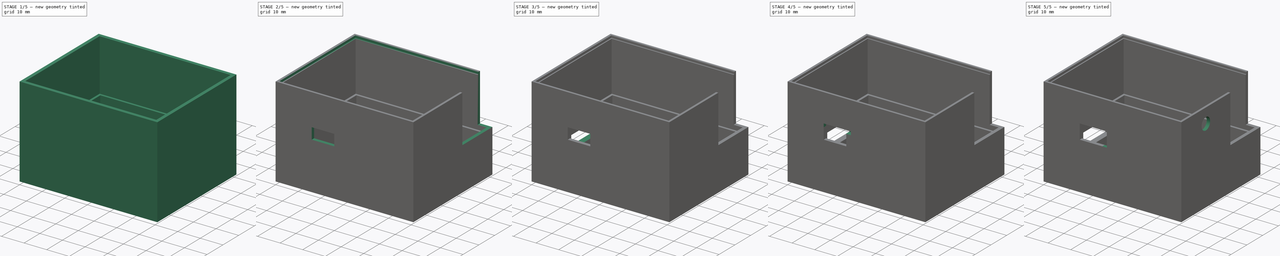
[diagram: build sequence overview — one tinted view per stage of 5, left to right]
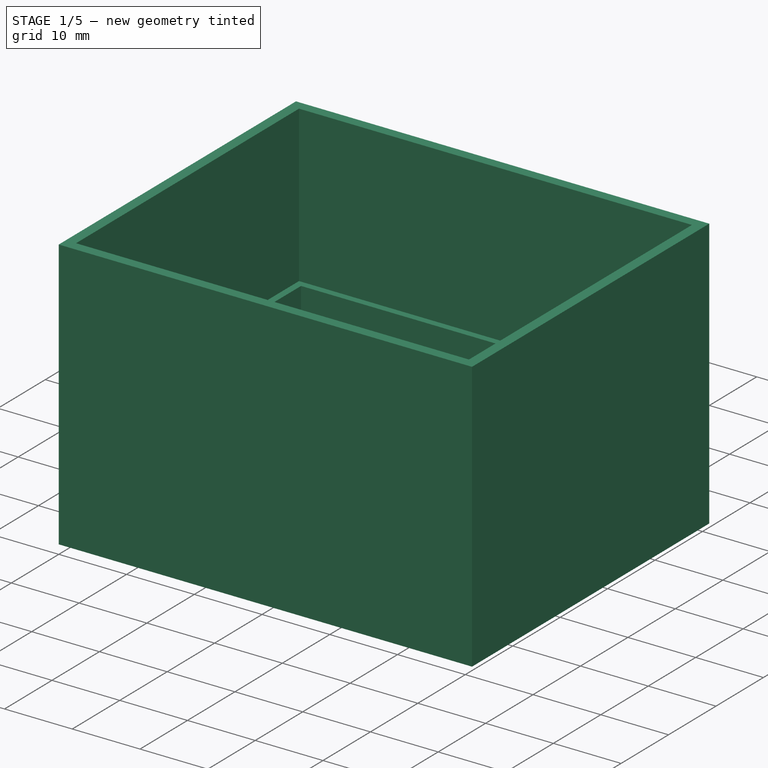
[diagram: stage 1 of 5 — iso view after this stage's code; geometry added in this stage tinted green]
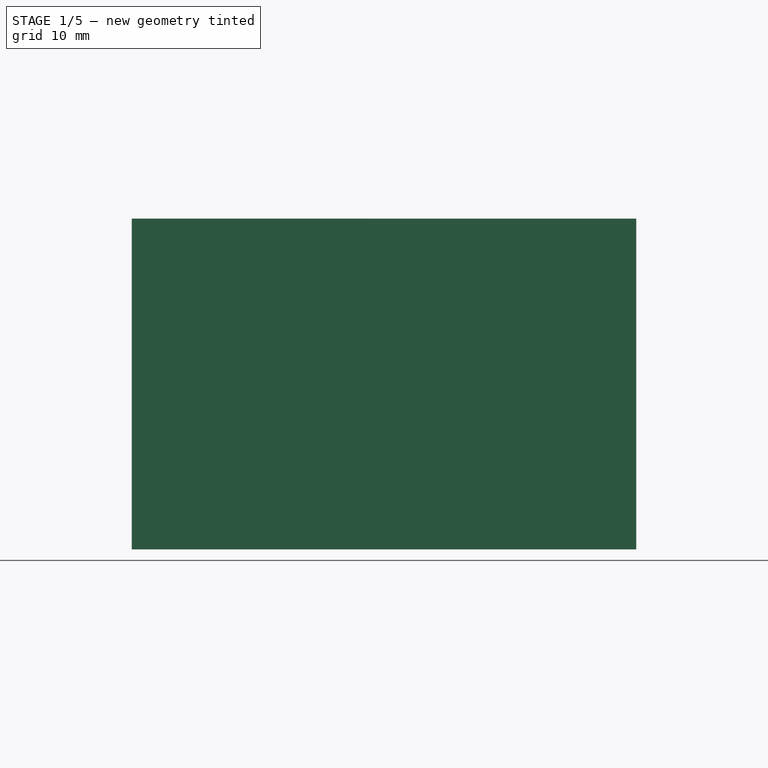
[diagram: stage 1 of 5 — front view after this stage's code; geometry added in this stage tinted green]
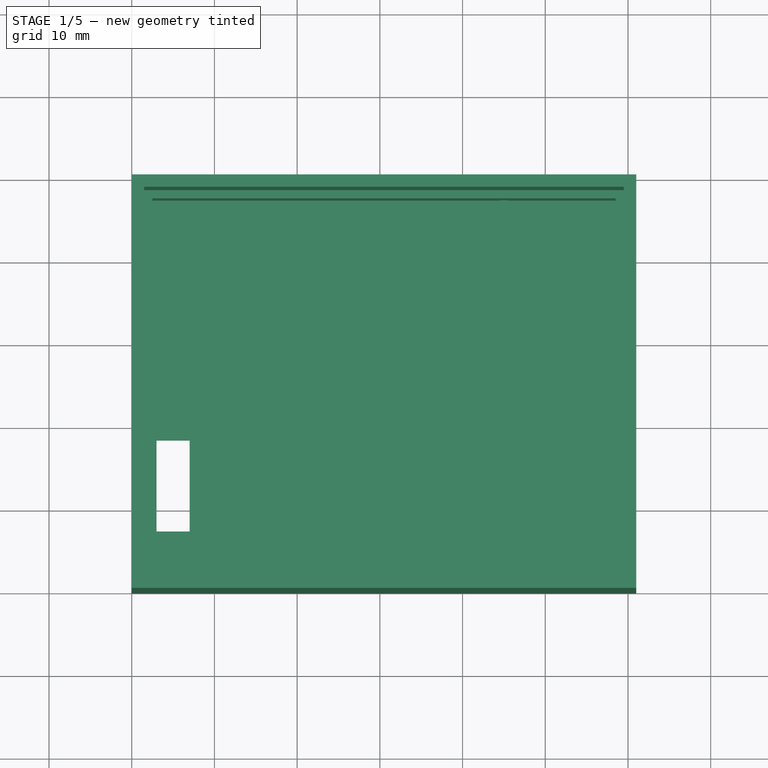
[diagram: stage 1 of 5 — top view after this stage's code; geometry added in this stage tinted green]
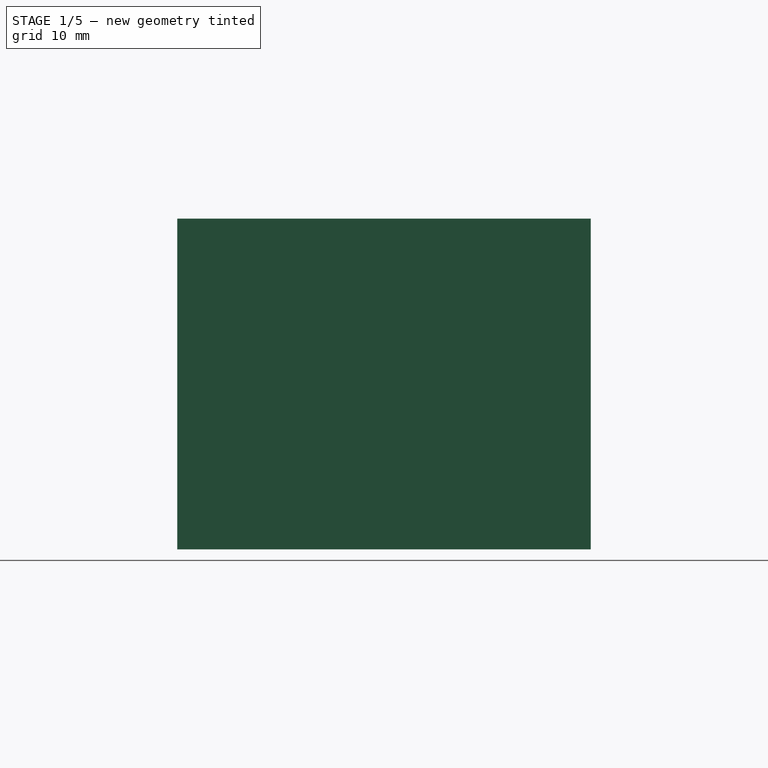
[diagram: stage 1 of 5 — right view after this stage's code; geometry added in this stage tinted green]
FCSTD DOCUMENT  (FreeCAD 0.18R)
Label: base
License: All rights reserved
LicenseURL: http://en.wikipedia.org/wiki/All_rights_reserved
objects: Sketcher::SketchObject×25, PartDesign::Pocket×19, PartDesign::Pad×5, PartDesign::Body×1
note: 74 computed .brp shape members not serialized (recipe doc carries the construction recipe); baked Part::Feature solids carry a one-line shape summary decoded from their .brp

FEATURE [Sketcher::SketchObject] Sketch
  MapMode = 5
  Support = -> [XY_Plane]
  sketch-geometry (4):
    g0: LineSegment StartX=0 StartY=0 StartZ=0 EndX=61 EndY=0 EndZ=0
    g1: LineSegment StartX=61 StartY=0 StartZ=0 EndX=61 EndY=50 EndZ=0
    g2: LineSegment StartX=61 StartY=50 StartZ=0 EndX=0 EndY=50 EndZ=0
    g3: LineSegment StartX=0 StartY=50 StartZ=0 EndX=0 EndY=0 EndZ=0
  constraints (9):
    c: Coincident(g0,g1)
    c: Coincident(g1,g2)
    c: Coincident(g2,g3)
    c: Coincident(g3,g0)
    c: Horizontal(g0)
    c: Horizontal(g2)
    c: Vertical(g1)
    c: Vertical(g3)
    c: Coincident(g0,g-1)
FEATURE [PartDesign::Pad] Pad
  Length = 40
  Length2 = 100
  Profile = -> Sketch
  Type = 0
FEATURE [Sketcher::SketchObject] Sketch001
  MapMode = 5
  Placement = pos=(0,0,40) rot=(0,0,1;0rad)
  Support = -> [Pad]
  sketch-geometry (4):
    g0: LineSegment StartX=1.5 StartY=1.5 StartZ=0 EndX=59.5 EndY=1.5 EndZ=0
    g1: LineSegment StartX=59.5 StartY=1.5 StartZ=0 EndX=59.5 EndY=48.5 EndZ=0
    g2: LineSegment StartX=59.5 StartY=48.5 StartZ=0 EndX=1.5 EndY=48.5 EndZ=0
    g3: LineSegment StartX=1.5 StartY=48.5 StartZ=0 EndX=1.5 EndY=1.5 EndZ=0
  constraints (8):
    c: Coincident(g0,g1)
    c: Coincident(g1,g2)
    c: Coincident(g2,g3)
    c: Coincident(g3,g0)
    c: Horizontal(g0)
    c: Horizontal(g2)
    c: Vertical(g1)
    c: Vertical(g3)
FEATURE [PartDesign::Pocket] Pocket
  BaseFeature = -> Pad
  Length = 23
  Length2 = 100
  Profile = -> Sketch001
  Type = 0
FEATURE [Sketcher::SketchObject] Sketch002
  MapMode = 5
  Placement = pos=(0,0,17) rot=(0,0,1;0rad)
  Support = -> [Pocket]
  sketch-geometry (4):
    g0: LineSegment StartX=2.5 StartY=2.5 StartZ=0 EndX=58.5 EndY=2.5 EndZ=0
    g1: LineSegment StartX=58.5 StartY=2.5 StartZ=0 EndX=58.5 EndY=47.5 EndZ=0
    g2: LineSegment StartX=58.5 StartY=47.5 StartZ=0 EndX=2.5 EndY=47.5 EndZ=0
    g3: LineSegment StartX=2.5 StartY=47.5 StartZ=0 EndX=2.5 EndY=2.5 EndZ=0
  constraints (8):
    c: Coincident(g0,g1)
    c: Coincident(g1,g2)
    c: Coincident(g2,g3)
    c: Coincident(g3,g0)
    c: Horizontal(g0)
    c: Horizontal(g2)
    c: Vertical(g1)
    c: Vertical(g3)
FEATURE [PartDesign::Pocket] Pocket001
  BaseFeature = -> Pocket
  Length = 16
  Length2 = 100
  Profile = -> Sketch002
  Type = 0
FEATURE [Sketcher::SketchObject] Sketch003
  MapMode = 5
  Placement = pos=(0,0,1) rot=(0,0,1;0rad)
  Support = -> [Pocket001]
  sketch-geometry (4):
    g0: LineSegment StartX=44.5 StartY=2.5 StartZ=0 EndX=45.5 EndY=2.5 EndZ=0
    g1: LineSegment StartX=45.5 StartY=2.5 StartZ=0 EndX=45.5 EndY=47.5 EndZ=0
    g2: LineSegment StartX=45.5 StartY=47.5 StartZ=0 EndX=44.5 EndY=47.5 EndZ=0
    g3: LineSegment StartX=44.5 StartY=47.5 StartZ=0 EndX=44.5 EndY=2.5 EndZ=0
  constraints (8):
    c: Coincident(g0,g1)
    c: Coincident(g1,g2)
    c: Coincident(g2,g3)
    c: Coincident(g3,g0)
    c: Horizontal(g0)
    c: Horizontal(g2)
    c: Vertical(g1)
    c: Vertical(g3)
FEATURE [PartDesign::Pad] Pad001
  BaseFeature = -> Pocket001
  Length = 3
  Length2 = 100
  Profile = -> Sketch003
  Type = 0
FEATURE [Sketcher::SketchObject] Sketch004
  MapMode = 5
  Placement = pos=(0,0,1) rot=(0,0,1;0rad)
  Support = -> [Pad001]
  sketch-geometry (4):
    g0: LineSegment StartX=3 StartY=7.5 StartZ=0 EndX=7 EndY=7.5 EndZ=0
    g1: LineSegment StartX=7 StartY=7.5 StartZ=0 EndX=7 EndY=18.5 EndZ=0
    g2: LineSegment StartX=7 StartY=18.5 StartZ=0 EndX=3 EndY=18.5 EndZ=0
    g3: LineSegment StartX=3 StartY=18.5 StartZ=0 EndX=3 EndY=7.5 EndZ=0
  constraints (8):
    c: Coincident(g0,g1)
    c: Coincident(g1,g2)
    c: Coincident(g2,g3)
    c: Coincident(g3,g0)
    c: Horizontal(g0)
    c: Horizontal(g2)
    c: Vertical(g1)
    c: Vertical(g3)
FEATURE [PartDesign::Pocket] Pocket002
  BaseFeature = -> Pad001
  Length = 5
  Length2 = 100
  Profile = -> Sketch004
  Type = 0
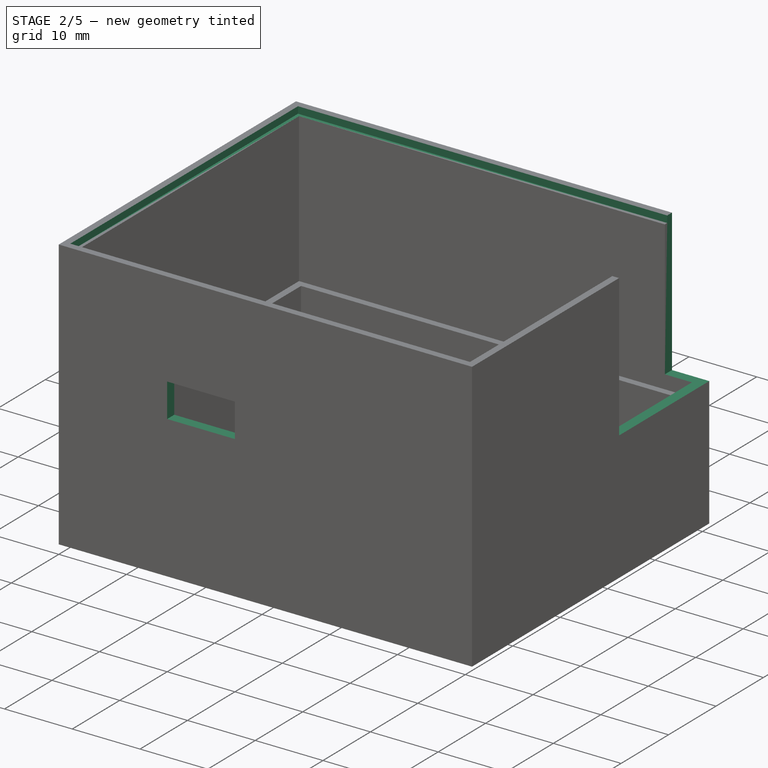
[diagram: stage 2 of 5 — iso view after this stage's code; geometry added in this stage tinted green]
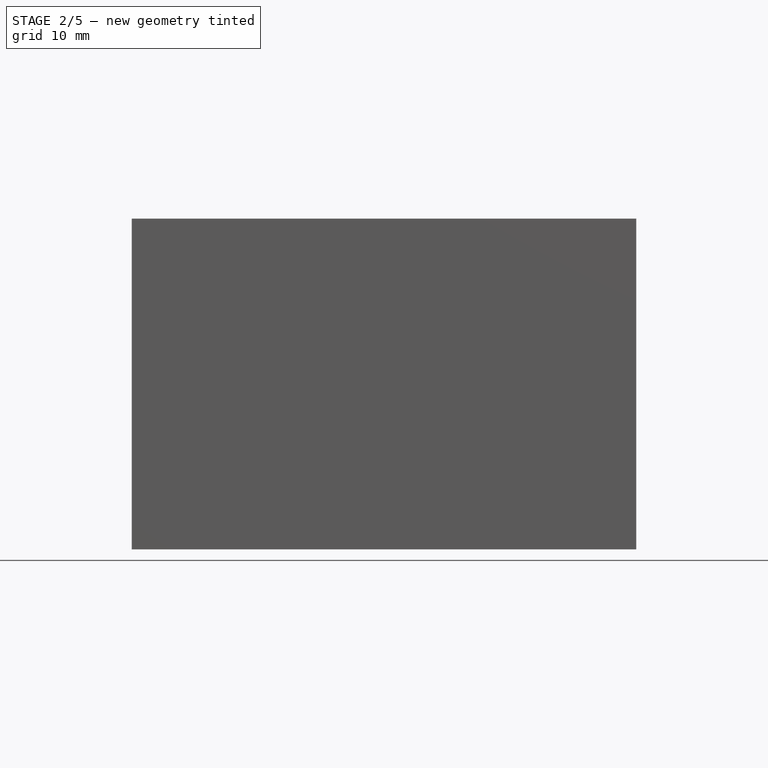
[diagram: stage 2 of 5 — front view after this stage's code; geometry added in this stage tinted green]
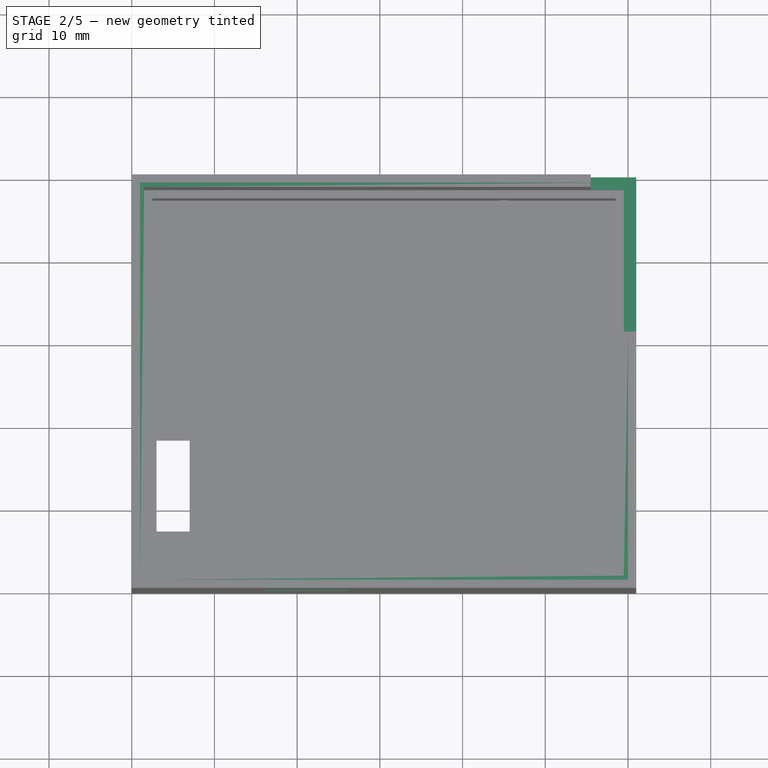
[diagram: stage 2 of 5 — top view after this stage's code; geometry added in this stage tinted green]
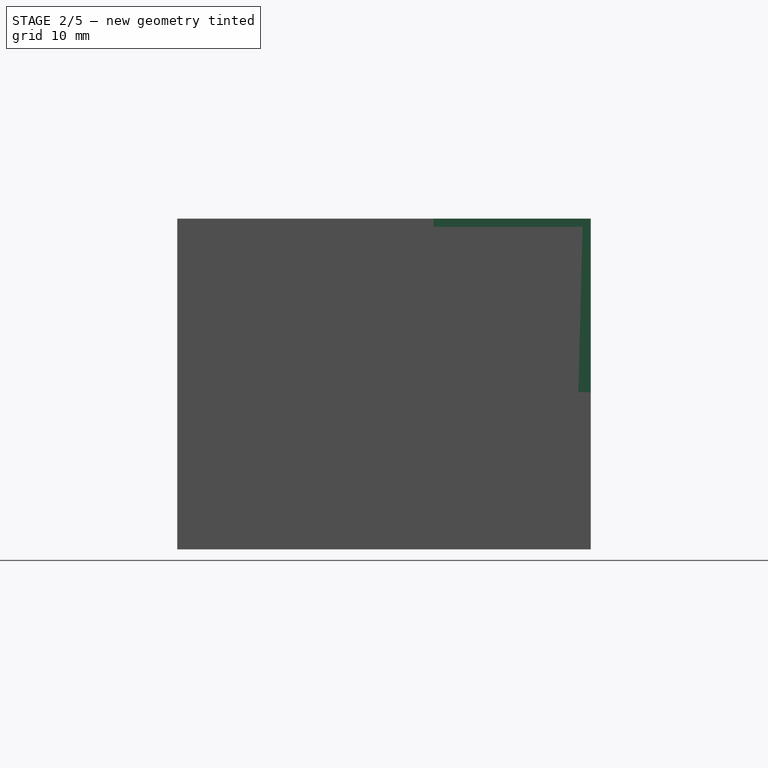
[diagram: stage 2 of 5 — right view after this stage's code; geometry added in this stage tinted green]
FEATURE [Sketcher::SketchObject] Sketch005
  MapMode = 5
  Placement = pos=(0,0,40) rot=(0,0,1;0rad)
  Support = -> [Pocket002]
  sketch-geometry (4):
    g0: LineSegment StartX=55.5 StartY=50 StartZ=0 EndX=61 EndY=50 EndZ=0
    g1: LineSegment StartX=61 StartY=50 StartZ=0 EndX=61 EndY=34.5 EndZ=0
    g2: LineSegment StartX=61 StartY=34.5 StartZ=0 EndX=55.5 EndY=34.5 EndZ=0
    g3: LineSegment StartX=55.5 StartY=34.5 StartZ=0 EndX=55.5 EndY=50 EndZ=0
  constraints (8):
    c: Coincident(g0,g1)
    c: Coincident(g1,g2)
    c: Coincident(g2,g3)
    c: Coincident(g3,g0)
    c: Horizontal(g0)
    c: Horizontal(g2)
    c: Vertical(g1)
    c: Vertical(g3)
FEATURE [PartDesign::Pocket] Pocket003
  BaseFeature = -> Pocket002
  Length = 23
  Length2 = 100
  Profile = -> Sketch005
  Type = 0
FEATURE [Sketcher::SketchObject] Sketch006
  MapMode = 5
  Placement = pos=(0,0,40) rot=(0,0,1;0rad)
  Support = -> [Pocket003]
  sketch-geometry (4):
    g0: LineSegment StartX=1 StartY=1 StartZ=0 EndX=60 EndY=1 EndZ=0
    g1: LineSegment StartX=60 StartY=1 StartZ=0 EndX=60 EndY=49 EndZ=0
    g2: LineSegment StartX=60 StartY=49 StartZ=0 EndX=1 EndY=49 EndZ=0
    g3: LineSegment StartX=1 StartY=49 StartZ=0 EndX=1 EndY=1 EndZ=0
  constraints (8):
    c: Coincident(g0,g1)
    c: Coincident(g1,g2)
    c: Coincident(g2,g3)
    c: Coincident(g3,g0)
    c: Horizontal(g0)
    c: Horizontal(g2)
    c: Vertical(g1)
    c: Vertical(g3)
FEATURE [PartDesign::Pocket] Pocket004
  BaseFeature = -> Pocket003
  Length = 1
  Length2 = 100
  Profile = -> Sketch006
  Type = 0
FEATURE [Sketcher::SketchObject] Sketch007
  MapMode = 5
  Placement = pos=(0,0,40) rot=(0,0,1;0rad)
  Support = -> [Pocket004]
  sketch-geometry (4):
    g0: LineSegment StartX=58.5 StartY=34.5 StartZ=0 EndX=61 EndY=34.5 EndZ=0
    g1: LineSegment StartX=61 StartY=34.5 StartZ=0 EndX=61 EndY=31 EndZ=0
    g2: LineSegment StartX=61 StartY=31 StartZ=0 EndX=58.5 EndY=31 EndZ=0
    g3: LineSegment StartX=58.5 StartY=31 StartZ=0 EndX=58.5 EndY=34.5 EndZ=0
  constraints (8):
    c: Coincident(g0,g1)
    c: Coincident(g1,g2)
    c: Coincident(g2,g3)
    c: Coincident(g3,g0)
    c: Horizontal(g0)
    c: Horizontal(g2)
    c: Vertical(g1)
    c: Vertical(g3)
FEATURE [PartDesign::Pocket] Pocket005
  BaseFeature = -> Pocket004
  Length = 23
  Length2 = 100
  Profile = -> Sketch007
  Type = 0
FEATURE [Sketcher::SketchObject] Sketch008
  MapMode = 5
  Placement = pos=(0,1.5,0) rot=(0,0.707107,0.707107;3.14159rad)
  Support = -> [Pocket005]
FEATURE [Sketcher::SketchObject] Sketch009
  MapMode = 5
  Placement = pos=(0,0,0) rot=(1,0,0;1.5708rad)
  Support = -> [Pocket005]
  sketch-geometry (4):
    g0: LineSegment StartX=16 StartY=21 StartZ=0 EndX=26 EndY=21 EndZ=0
    g1: LineSegment StartX=26 StartY=21 StartZ=0 EndX=26 EndY=26 EndZ=0
    g2: LineSegment StartX=26 StartY=26 StartZ=0 EndX=16 EndY=26 EndZ=0
    g3: LineSegment StartX=16 StartY=26 StartZ=0 EndX=16 EndY=21 EndZ=0
  constraints (8):
    c: Coincident(g0,g1)
    c: Coincident(g1,g2)
    c: Coincident(g2,g3)
    c: Coincident(g3,g0)
    c: Horizontal(g0)
    c: Horizontal(g2)
    c: Vertical(g1)
    c: Vertical(g3)
FEATURE [PartDesign::Pocket] Pocket006
  BaseFeature = -> Pocket005
  Length = 5
  Length2 = 100
  Profile = -> Sketch009
  Type = 0
FEATURE [Sketcher::SketchObject] Sketch010
  MapMode = 5
  Placement = pos=(0,0,17) rot=(0,0,1;0rad)
  Support = -> [Pocket006]
  sketch-geometry (6):
    g0: LineSegment StartX=55.5 StartY=50 StartZ=0 EndX=61 EndY=50 EndZ=0
    g1: LineSegment StartX=61 StartY=50 StartZ=0 EndX=61 EndY=31 EndZ=0
    g2: LineSegment StartX=61 StartY=31 StartZ=0 EndX=59.5 EndY=31 EndZ=0
    g3: LineSegment StartX=59.5 StartY=31 StartZ=0 EndX=59.5 EndY=48.5 EndZ=0
    g4: LineSegment StartX=59.5 StartY=48.5 StartZ=0 EndX=55.5 EndY=48.5 EndZ=0
    g5: LineSegment StartX=55.5 StartY=48.5 StartZ=0 EndX=55.5 EndY=50 EndZ=0
  constraints (12):
    c: Horizontal(g0)
    c: Coincident(g0,g1)
    c: Vertical(g1)
    c: Coincident(g1,g2)
    c: Horizontal(g2)
    c: Coincident(g2,g3)
    c: Vertical(g3)
    c: Coincident(g3,g4)
    c: Horizontal(g4)
    c: Coincident(g4,g5)
    c: Coincident(g5,g0)
    c: Vertical(g5)
FEATURE [PartDesign::Pad] Pad002
  BaseFeature = -> Pocket006
  Length = 2
  Length2 = 100
  Profile = -> Sketch010
  Type = 0
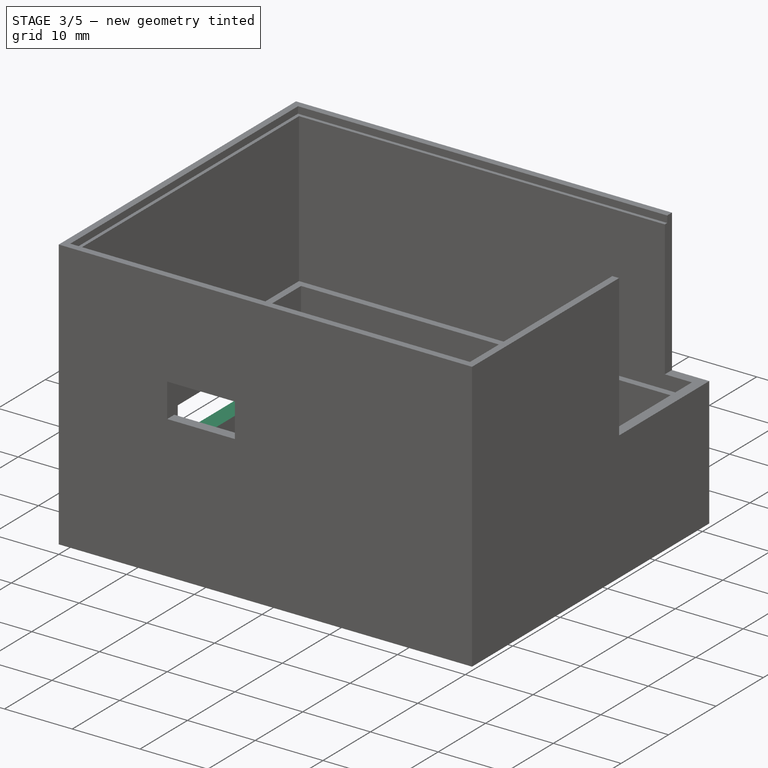
[diagram: stage 3 of 5 — iso view after this stage's code; geometry added in this stage tinted green]
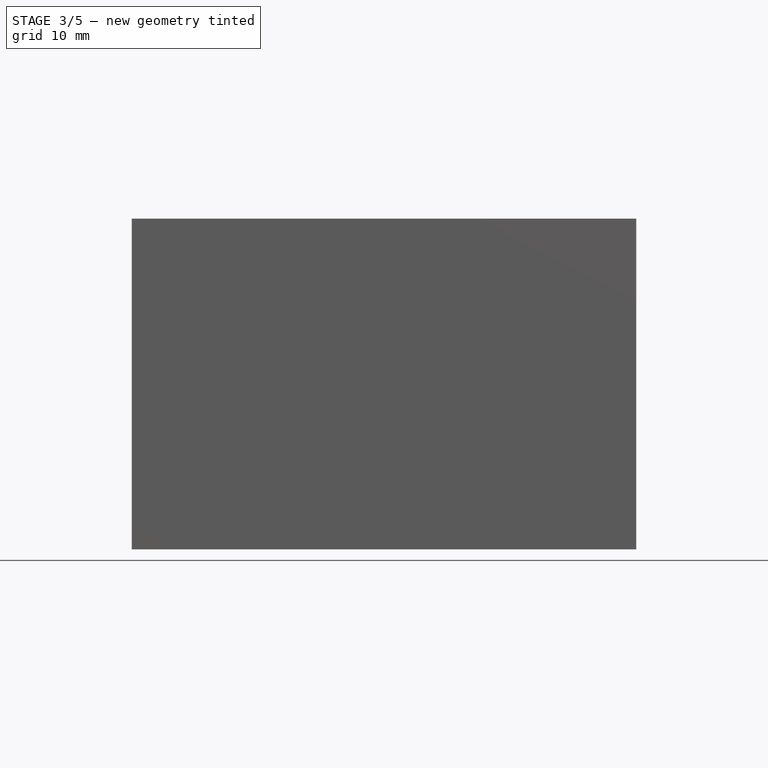
[diagram: stage 3 of 5 — front view after this stage's code; geometry added in this stage tinted green]
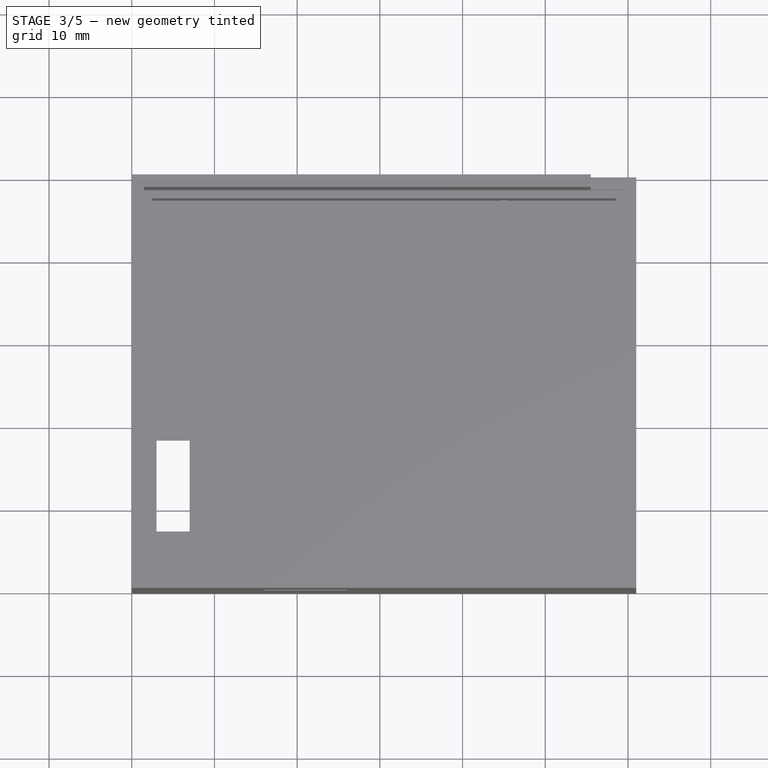
[diagram: stage 3 of 5 — top view after this stage's code; geometry added in this stage tinted green]
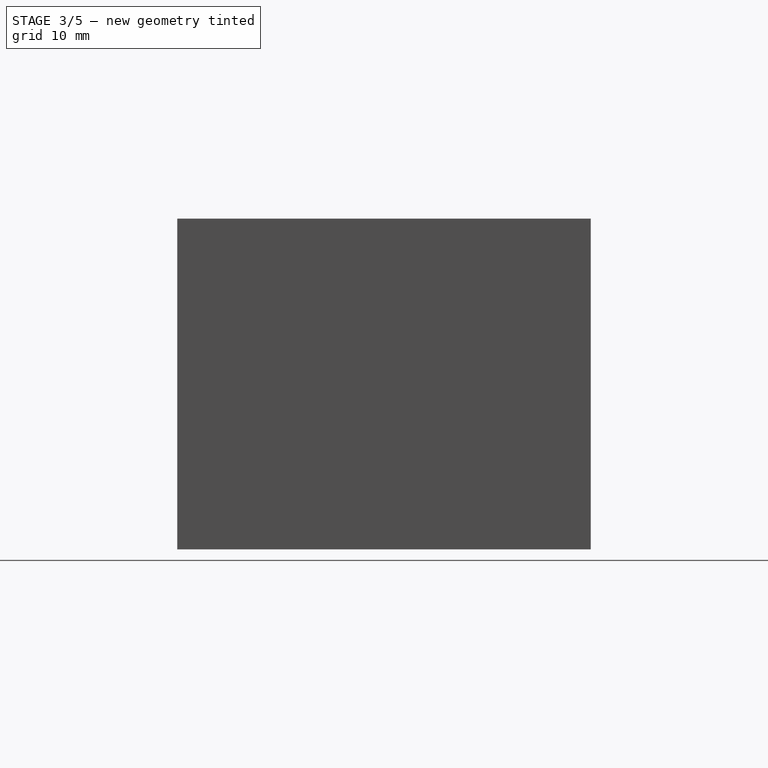
[diagram: stage 3 of 5 — right view after this stage's code; geometry added in this stage tinted green]
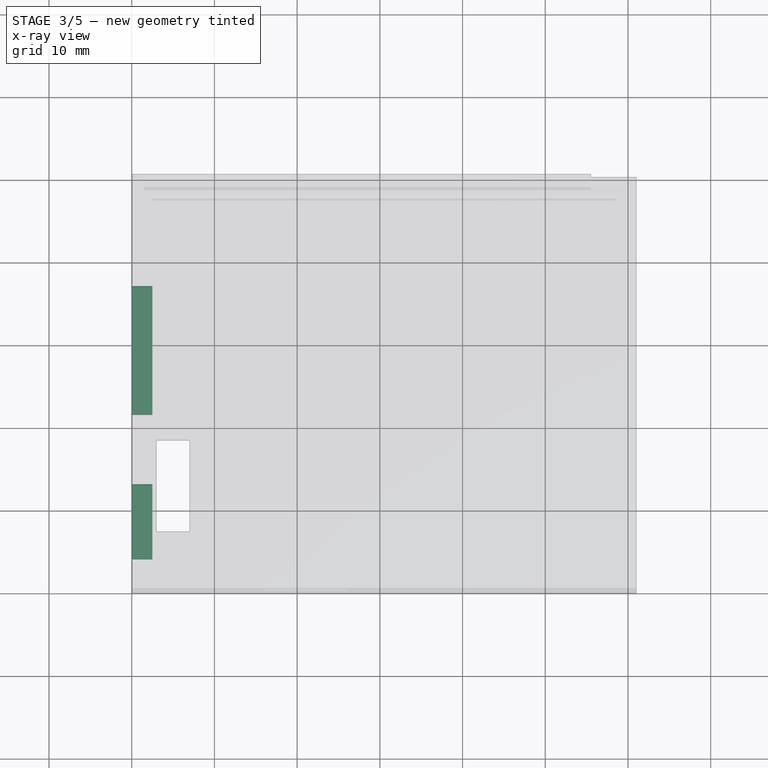
[diagram: stage 3 of 5 — x-ray composite at the top view; earlier geometry ghosted, this stage's added geometry solid]
FEATURE [Sketcher::SketchObject] Sketch011
  MapMode = 5
  Placement = pos=(2.5,0,0) rot=(0.57735,0.57735,0.57735;2.0944rad)
  Support = -> [Pad002]
  sketch-geometry (4):
    g0: LineSegment StartX=4 StartY=7.5 StartZ=0 EndX=12 EndY=7.5 EndZ=0
    g1: LineSegment StartX=12 StartY=7.5 StartZ=0 EndX=12 EndY=12 EndZ=0
    g2: LineSegment StartX=12 StartY=12 StartZ=0 EndX=4 EndY=12 EndZ=0
    g3: LineSegment StartX=4 StartY=12 StartZ=0 EndX=4 EndY=7.5 EndZ=0
  constraints (8):
    c: Coincident(g0,g1)
    c: Coincident(g1,g2)
    c: Coincident(g2,g3)
    c: Coincident(g3,g0)
    c: Horizontal(g0)
    c: Horizontal(g2)
    c: Vertical(g1)
    c: Vertical(g3)
FEATURE [PartDesign::Pocket] Pocket007
  BaseFeature = -> Pad002
  Length = 5
  Length2 = 100
  Profile = -> Sketch011
  Type = 0
FEATURE [Sketcher::SketchObject] Sketch012
  MapMode = 5
  Placement = pos=(2.5,0,0) rot=(0.57735,0.57735,0.57735;2.0944rad)
  Support = -> [Pocket007]
  sketch-geometry (4):
    g0: LineSegment StartX=21.5 StartY=5 StartZ=0 EndX=37 EndY=5 EndZ=0
    g1: LineSegment StartX=37 StartY=5 StartZ=0 EndX=37 EndY=11 EndZ=0
    g2: LineSegment StartX=37 StartY=11 StartZ=0 EndX=21.5 EndY=11 EndZ=0
    g3: LineSegment StartX=21.5 StartY=11 StartZ=0 EndX=21.5 EndY=5 EndZ=0
  constraints (8):
    c: Coincident(g0,g1)
    c: Coincident(g1,g2)
    c: Coincident(g2,g3)
    c: Coincident(g3,g0)
    c: Horizontal(g0)
    c: Horizontal(g2)
    c: Vertical(g1)
    c: Vertical(g3)
FEATURE [PartDesign::Pocket] Pocket008
  BaseFeature = -> Pocket007
  Length = 5
  Length2 = 100
  Profile = -> Sketch012
  Type = 0
FEATURE [Sketcher::SketchObject] Sketch013
  MapMode = 5
  Placement = pos=(0,0,0) rot=(0.57735,-0.57735,-0.57735;2.0944rad)
  Support = -> [Pocket008]
  sketch-geometry (4):
    g0: LineSegment StartX=-13 StartY=13 StartZ=0 EndX=-4 EndY=13 EndZ=0
    g1: LineSegment StartX=-4 StartY=13 StartZ=0 EndX=-4 EndY=12 EndZ=0
    g2: LineSegment StartX=-4 StartY=12 StartZ=0 EndX=-13 EndY=12 EndZ=0
    g3: LineSegment StartX=-13 StartY=12 StartZ=0 EndX=-13 EndY=13 EndZ=0
  constraints (8):
    c: Coincident(g0,g1)
    c: Coincident(g1,g2)
    c: Coincident(g2,g3)
    c: Coincident(g3,g0)
    c: Horizontal(g0)
    c: Horizontal(g2)
    c: Vertical(g1)
    c: Vertical(g3)
FEATURE [PartDesign::Pocket] Pocket009
  BaseFeature = -> Pocket008
  Length = 3
  Length2 = 100
  Profile = -> Sketch013
  Type = 0
FEATURE [Sketcher::SketchObject] Sketch014
  MapMode = 5
  Placement = pos=(0,0,0) rot=(0.57735,-0.57735,-0.57735;2.0944rad)
  Support = -> [Pocket009]
  sketch-geometry (4):
    g0: LineSegment StartX=-13 StartY=12 StartZ=0 EndX=-12 EndY=12 EndZ=0
    g1: LineSegment StartX=-12 StartY=12 StartZ=0 EndX=-12 EndY=7.5 EndZ=0
    g2: LineSegment StartX=-12 StartY=7.5 StartZ=0 EndX=-13 EndY=7.5 EndZ=0
    g3: LineSegment StartX=-13 StartY=7.5 StartZ=0 EndX=-13 EndY=12 EndZ=0
  constraints (8):
    c: Coincident(g0,g1)
    c: Coincident(g1,g2)
    c: Coincident(g2,g3)
    c: Coincident(g3,g0)
    c: Horizontal(g0)
    c: Horizontal(g2)
    c: Vertical(g1)
    c: Vertical(g3)
FEATURE [PartDesign::Pocket] Pocket010
  BaseFeature = -> Pocket009
  Length = 5
  Length2 = 100
  Profile = -> Sketch014
  Type = 0
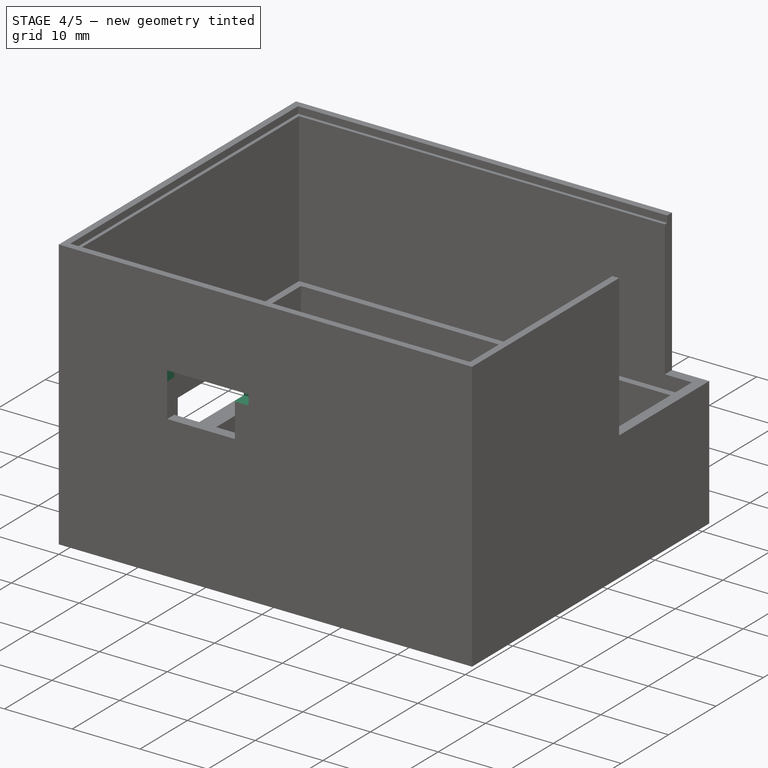
[diagram: stage 4 of 5 — iso view after this stage's code; geometry added in this stage tinted green]
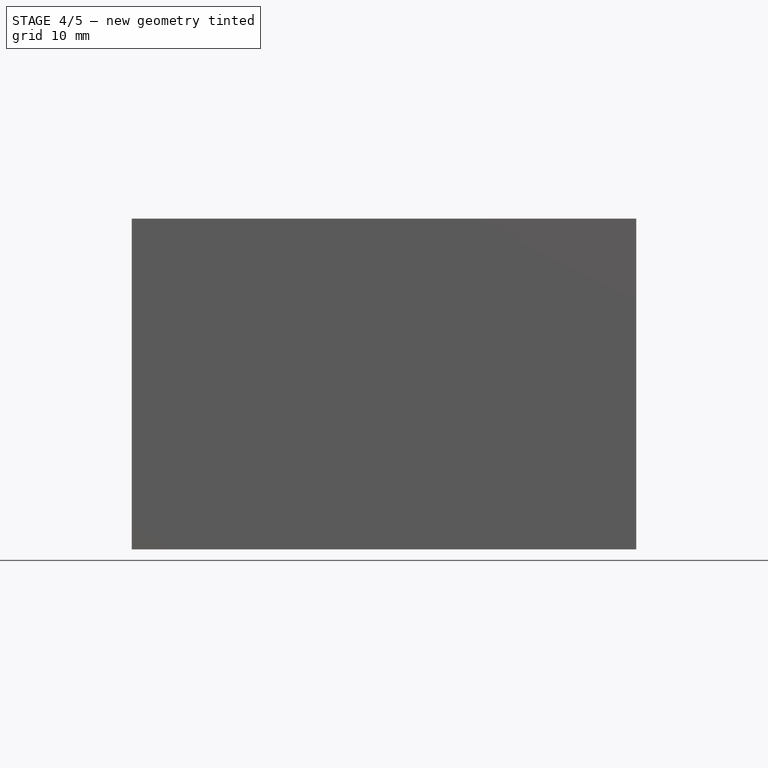
[diagram: stage 4 of 5 — front view after this stage's code; geometry added in this stage tinted green]
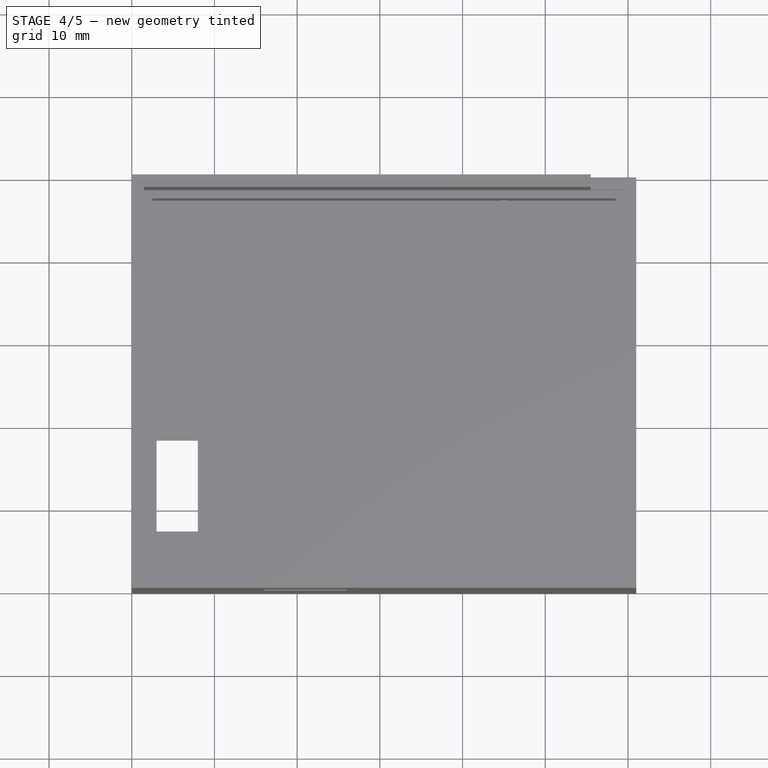
[diagram: stage 4 of 5 — top view after this stage's code; geometry added in this stage tinted green]
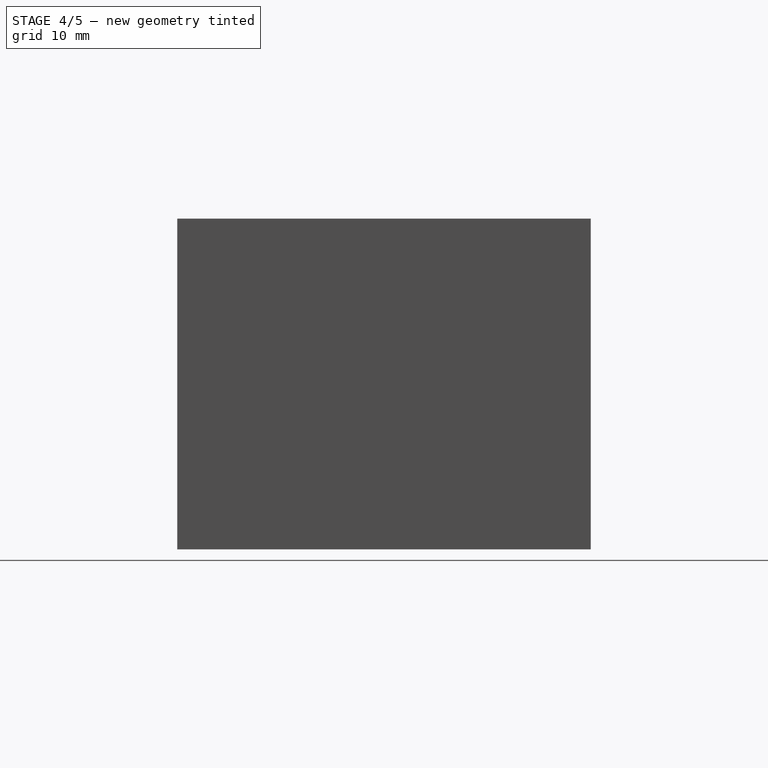
[diagram: stage 4 of 5 — right view after this stage's code; geometry added in this stage tinted green]
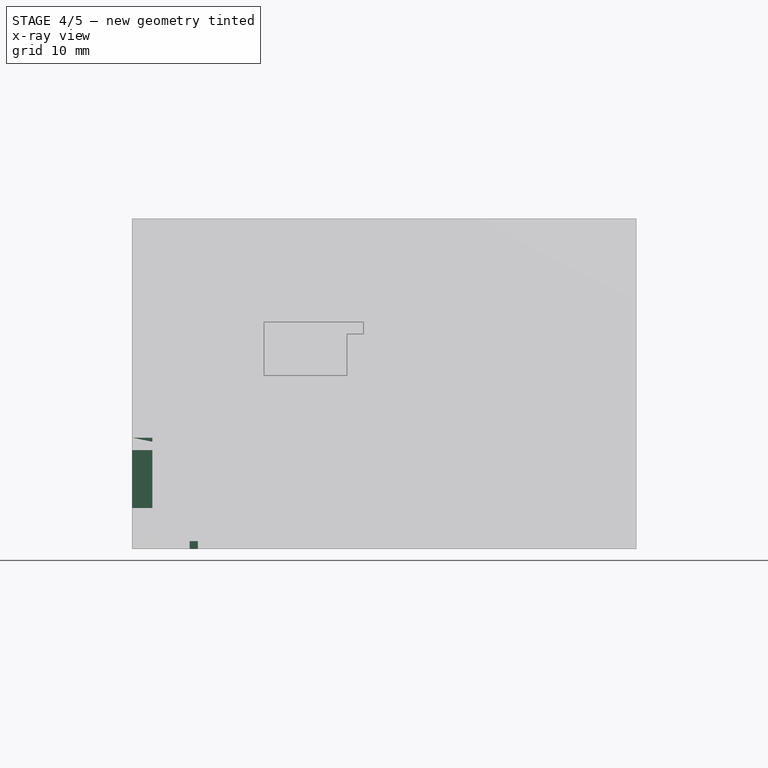
[diagram: stage 4 of 5 — x-ray composite at the front view; earlier geometry ghosted, this stage's added geometry solid]
FEATURE [Sketcher::SketchObject] Sketch015
  MapMode = 5
  Placement = pos=(0,0,0) rot=(0.57735,-0.57735,-0.57735;2.0944rad)
  Support = -> [Pocket010]
  sketch-geometry (4):
    g0: LineSegment StartX=-13 StartY=13.5 StartZ=0 EndX=-4 EndY=13.5 EndZ=0
    g1: LineSegment StartX=-4 StartY=13.5 StartZ=0 EndX=-4 EndY=13 EndZ=0
    g2: LineSegment StartX=-4 StartY=13 StartZ=0 EndX=-13 EndY=13 EndZ=0
    g3: LineSegment StartX=-13 StartY=13 StartZ=0 EndX=-13 EndY=13.5 EndZ=0
  constraints (8):
    c: Coincident(g0,g1)
    c: Coincident(g1,g2)
    c: Coincident(g2,g3)
    c: Coincident(g3,g0)
    c: Horizontal(g0)
    c: Horizontal(g2)
    c: Vertical(g1)
    c: Vertical(g3)
FEATURE [PartDesign::Pocket] Pocket011
  BaseFeature = -> Pocket010
  Length = 5
  Length2 = 100
  Profile = -> Sketch015
  Type = 0
FEATURE [Sketcher::SketchObject] Sketch016
  MapMode = 5
  Placement = pos=(0,0,0) rot=(0.57735,-0.57735,-0.57735;2.0944rad)
  Support = -> [Pocket011]
  sketch-geometry (4):
    g0: LineSegment StartX=-39 StartY=12 StartZ=0 EndX=-21.5 EndY=12 EndZ=0
    g1: LineSegment StartX=-21.5 StartY=12 StartZ=0 EndX=-21.5 EndY=11 EndZ=0
    g2: LineSegment StartX=-21.5 StartY=11 StartZ=0 EndX=-39 EndY=11 EndZ=0
    g3: LineSegment StartX=-39 StartY=11 StartZ=0 EndX=-39 EndY=12 EndZ=0
  constraints (8):
    c: Coincident(g0,g1)
    c: Coincident(g1,g2)
    c: Coincident(g2,g3)
    c: Coincident(g3,g0)
    c: Horizontal(g0)
    c: Horizontal(g2)
    c: Vertical(g1)
    c: Vertical(g3)
FEATURE [PartDesign::Pocket] Pocket012
  BaseFeature = -> Pocket011
  Length = 5
  Length2 = 100
  Profile = -> Sketch016
  Type = 0
FEATURE [Sketcher::SketchObject] Sketch017
  MapMode = 5
  Placement = pos=(0,0,0) rot=(0.57735,-0.57735,-0.57735;2.0944rad)
  Support = -> [Pocket012]
  sketch-geometry (4):
    g0: LineSegment StartX=-39 StartY=11 StartZ=0 EndX=-37 EndY=11 EndZ=0
    g1: LineSegment StartX=-37 StartY=11 StartZ=0 EndX=-37 EndY=5 EndZ=0
    g2: LineSegment StartX=-37 StartY=5 StartZ=0 EndX=-39 EndY=5 EndZ=0
    g3: LineSegment StartX=-39 StartY=5 StartZ=0 EndX=-39 EndY=11 EndZ=0
  constraints (8):
    c: Coincident(g0,g1)
    c: Coincident(g1,g2)
    c: Coincident(g2,g3)
    c: Coincident(g3,g0)
    c: Horizontal(g0)
    c: Horizontal(g2)
    c: Vertical(g1)
    c: Vertical(g3)
FEATURE [PartDesign::Pocket] Pocket013
  BaseFeature = -> Pocket012
  Length = 5
  Length2 = 100
  Profile = -> Sketch017
  Type = 0
FEATURE [Sketcher::SketchObject] Sketch018
  MapMode = 5
  Placement = pos=(0,0,0) rot=(1,0,0;3.14159rad)
  Support = -> [Pocket013]
  sketch-geometry (4):
    g0: LineSegment StartX=7 StartY=-7.5 StartZ=0 EndX=8 EndY=-7.5 EndZ=0
    g1: LineSegment StartX=8 StartY=-7.5 StartZ=0 EndX=8 EndY=-18.5 EndZ=0
    g2: LineSegment StartX=8 StartY=-18.5 StartZ=0 EndX=7 EndY=-18.5 EndZ=0
    g3: LineSegment StartX=7 StartY=-18.5 StartZ=0 EndX=7 EndY=-7.5 EndZ=0
  constraints (8):
    c: Coincident(g0,g1)
    c: Coincident(g1,g2)
    c: Coincident(g2,g3)
    c: Coincident(g3,g0)
    c: Horizontal(g0)
    c: Horizontal(g2)
    c: Vertical(g1)
    c: Vertical(g3)
FEATURE [PartDesign::Pocket] Pocket014
  BaseFeature = -> Pocket013
  Length = 5
  Length2 = 100
  Profile = -> Sketch018
  Type = 0
FEATURE [Sketcher::SketchObject] Sketch019
  MapMode = 5
  Placement = pos=(0,0,0) rot=(1,0,0;1.5708rad)
  Support = -> [Pocket014]
  sketch-geometry (4):
    g0: LineSegment StartX=16 StartY=27.5 StartZ=0 EndX=28 EndY=27.5 EndZ=0
    g1: LineSegment StartX=28 StartY=27.5 StartZ=0 EndX=28 EndY=26 EndZ=0
    g2: LineSegment StartX=28 StartY=26 StartZ=0 EndX=16 EndY=26 EndZ=0
    g3: LineSegment StartX=16 StartY=26 StartZ=0 EndX=16 EndY=27.5 EndZ=0
  constraints (8):
    c: Coincident(g0,g1)
    c: Coincident(g1,g2)
    c: Coincident(g2,g3)
    c: Coincident(g3,g0)
    c: Horizontal(g0)
    c: Horizontal(g2)
    c: Vertical(g1)
    c: Vertical(g3)
FEATURE [PartDesign::Pocket] Pocket015
  BaseFeature = -> Pocket014
  Length = 5
  Length2 = 100
  Profile = -> Sketch019
  Type = 0
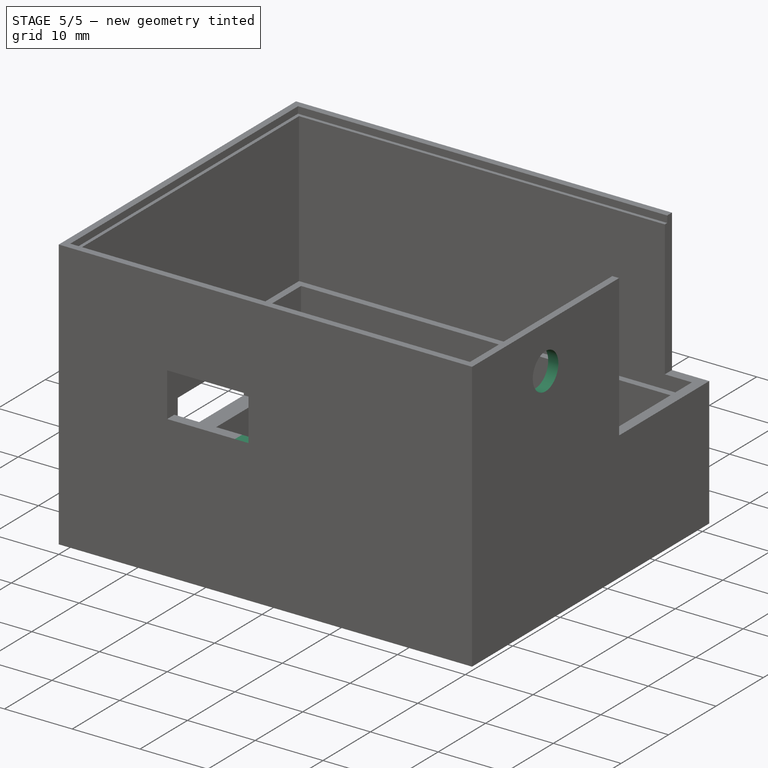
[diagram: stage 5 of 5 — iso view after this stage's code; geometry added in this stage tinted green]
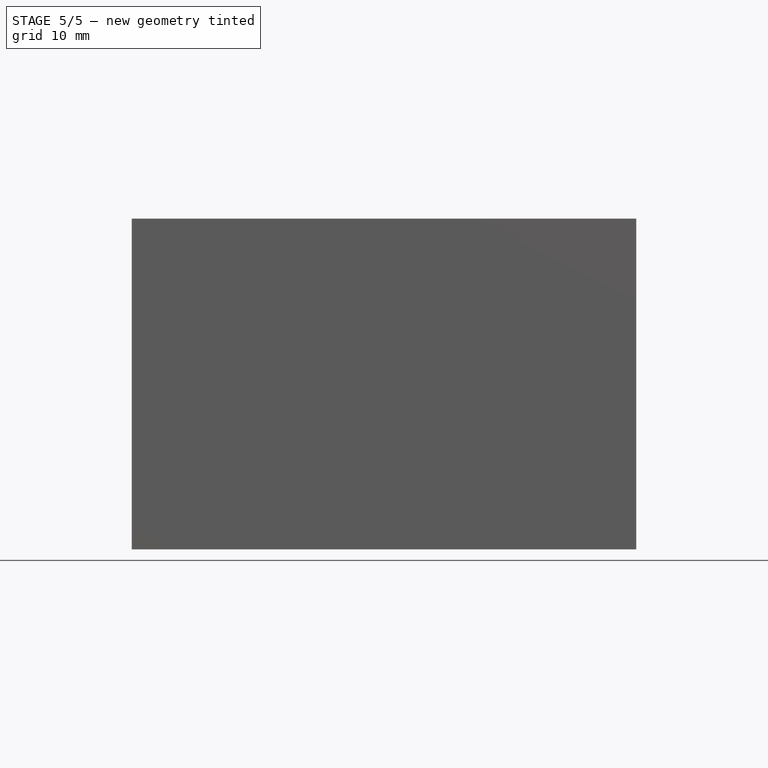
[diagram: stage 5 of 5 — front view after this stage's code; geometry added in this stage tinted green]
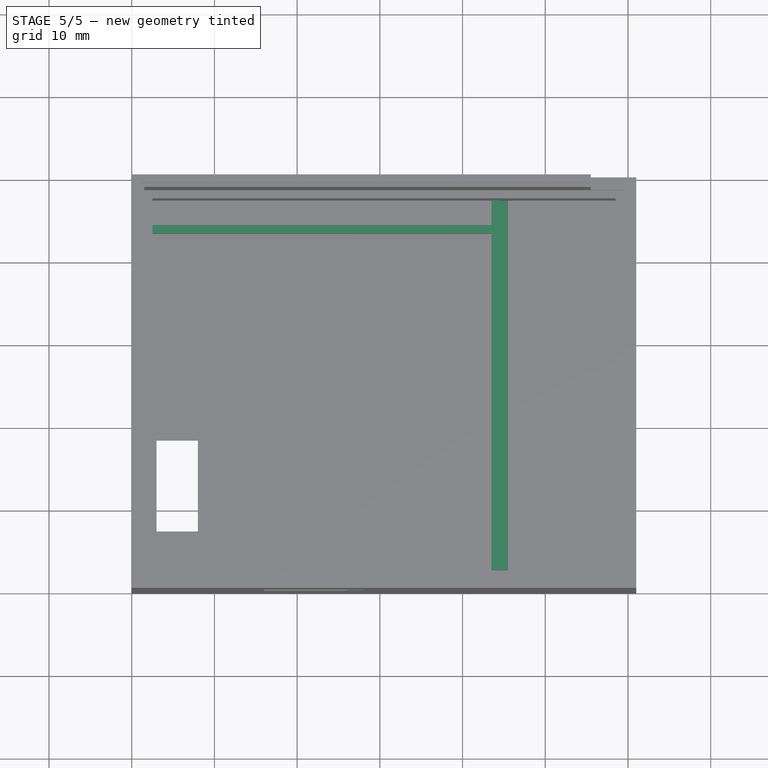
[diagram: stage 5 of 5 — top view after this stage's code; geometry added in this stage tinted green]
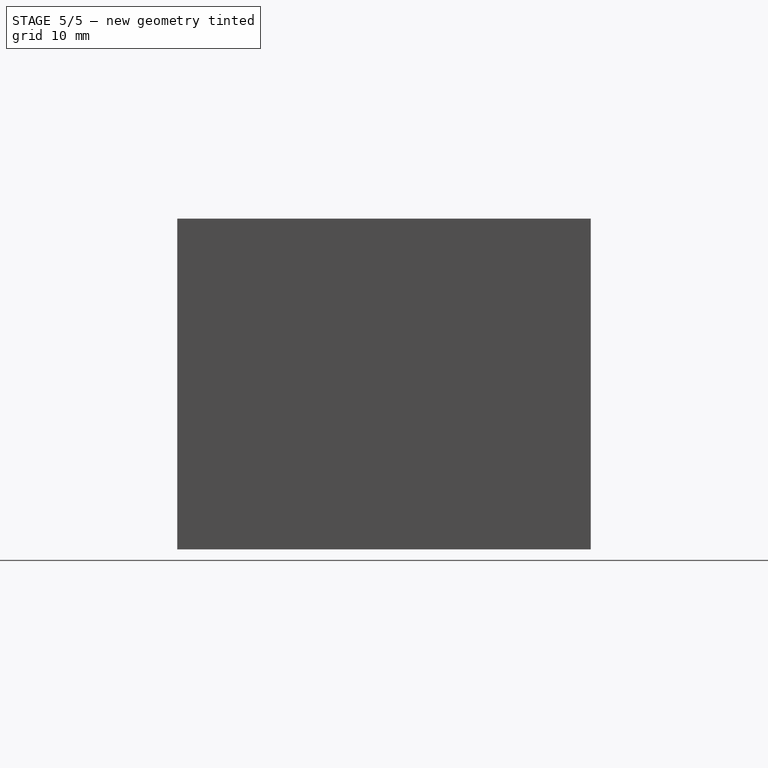
[diagram: stage 5 of 5 — right view after this stage's code; geometry added in this stage tinted green]
FEATURE [Sketcher::SketchObject] Sketch020
  MapMode = 5
  Placement = pos=(0,0,0) rot=(1,0,0;1.5708rad)
  Support = -> [Pocket015]
  sketch-geometry (4):
    g0: LineSegment StartX=26 StartY=26 StartZ=0 EndX=28 EndY=26 EndZ=0
    g1: LineSegment StartX=28 StartY=26 StartZ=0 EndX=28 EndY=21 EndZ=0
    g2: LineSegment StartX=28 StartY=21 StartZ=0 EndX=26 EndY=21 EndZ=0
    g3: LineSegment StartX=26 StartY=21 StartZ=0 EndX=26 EndY=26 EndZ=0
  constraints (8):
    c: Coincident(g0,g1)
    c: Coincident(g1,g2)
    c: Coincident(g2,g3)
    c: Coincident(g3,g0)
    c: Horizontal(g0)
    c: Horizontal(g2)
    c: Vertical(g1)
    c: Vertical(g3)
FEATURE [PartDesign::Pocket] Pocket016
  BaseFeature = -> Pocket015
  Length = 5
  Length2 = 100
  Profile = -> Sketch020
  Type = 0
FEATURE [Sketcher::SketchObject] Sketch021
  MapMode = 5
  Placement = pos=(61,0,0) rot=(0.57735,0.57735,0.57735;2.0944rad)
  Support = -> [Pocket016]
  sketch-geometry (1):
    g0: Circle CenterX=15.5 CenterY=33.5 CenterZ=0 NormalX=0 NormalY=0 NormalZ=1 AngleXU=0 Radius=2.69258
FEATURE [PartDesign::Pocket] Pocket017
  BaseFeature = -> Pocket016
  Length = 5
  Length2 = 100
  Profile = -> Sketch021
  Type = 0
FEATURE [Sketcher::SketchObject] Sketch022
  MapMode = 5
  Placement = pos=(0,0,1) rot=(0,0,1;0rad)
  Support = -> [Pocket017]
  sketch-geometry (4):
    g0: LineSegment StartX=43.5 StartY=47.5 StartZ=0 EndX=44.5 EndY=47.5 EndZ=0
    g1: LineSegment StartX=44.5 StartY=47.5 StartZ=0 EndX=44.5 EndY=2.5 EndZ=0
    g2: LineSegment StartX=44.5 StartY=2.5 StartZ=0 EndX=43.5 EndY=2.5 EndZ=0
    g3: LineSegment StartX=43.5 StartY=2.5 StartZ=0 EndX=43.5 EndY=47.5 EndZ=0
  constraints (8):
    c: Coincident(g0,g1)
    c: Coincident(g1,g2)
    c: Coincident(g2,g3)
    c: Coincident(g3,g0)
    c: Horizontal(g0)
    c: Horizontal(g2)
    c: Vertical(g1)
    c: Vertical(g3)
FEATURE [PartDesign::Pad] Pad003
  BaseFeature = -> Pocket017
  Length = 3
  Length2 = 100
  Profile = -> Sketch022
  Type = 0
FEATURE [Sketcher::SketchObject] Sketch023
  MapMode = 5
  Placement = pos=(0,0,1) rot=(0,0,1;0rad)
  Support = -> [Pad003]
  sketch-geometry (4):
    g0: LineSegment StartX=2.5 StartY=43.5 StartZ=0 EndX=43.5 EndY=43.5 EndZ=0
    g1: LineSegment StartX=43.5 StartY=43.5 StartZ=0 EndX=43.5 EndY=44.5 EndZ=0
    g2: LineSegment StartX=43.5 StartY=44.5 StartZ=0 EndX=2.5 EndY=44.5 EndZ=0
    g3: LineSegment StartX=2.5 StartY=44.5 StartZ=0 EndX=2.5 EndY=43.5 EndZ=0
  constraints (8):
    c: Coincident(g0,g1)
    c: Coincident(g1,g2)
    c: Coincident(g2,g3)
    c: Coincident(g3,g0)
    c: Horizontal(g0)
    c: Horizontal(g2)
    c: Vertical(g1)
    c: Vertical(g3)
FEATURE [PartDesign::Pad] Pad004
  BaseFeature = -> Pad003
  Length = 3
  Length2 = 100
  Profile = -> Sketch023
  Type = 0
FEATURE [Sketcher::SketchObject] Sketch024
  MapMode = 5
  Placement = pos=(0,0,4) rot=(0,0,1;0rad)
  Support = -> [Pad004]
  sketch-geometry (4):
    g0: LineSegment StartX=44.5 StartY=47.5 StartZ=0 EndX=45.5 EndY=47.5 EndZ=0
    g1: LineSegment StartX=45.5 StartY=47.5 StartZ=0 EndX=45.5 EndY=2.5 EndZ=0
    g2: LineSegment StartX=45.5 StartY=2.5 StartZ=0 EndX=44.5 EndY=2.5 EndZ=0
    g3: LineSegment StartX=44.5 StartY=2.5 StartZ=0 EndX=44.5 EndY=47.5 EndZ=0
  constraints (8):
    c: Coincident(g0,g1)
    c: Coincident(g1,g2)
    c: Coincident(g2,g3)
    c: Coincident(g3,g0)
    c: Horizontal(g0)
    c: Horizontal(g2)
    c: Vertical(g1)
    c: Vertical(g3)
FEATURE [PartDesign::Pocket] Pocket018
  BaseFeature = -> Pad004
  Length = 3
  Length2 = 100
  Profile = -> Sketch024
  Type = 0
FEATURE [PartDesign::Body] Body
  Group = -> [Sketch,Pad,Sketch001,Pocket,Sketch002,Pocket001,Sketch003,Pad001,Sketch004,Pocket002,Sketch005,Pocket003,Sketch006,Pocket004,Sketch007,Pocket005,Sketch008,Sketch009,Pocket006,Sketch010,Pad002,Sketch011,Pocket007,Sketch012,Pocket008,Sketch013,Pocket009,Sketch014,Pocket010,Sketch015,Pocket011,Sketch016,Pocket012,Sketch017,Pocket013,Sketch018,Pocket014,Sketch019,Pocket015,Sketch020,Pocket016,+8 more]
  Origin = -> Origin
  Tip = -> Pocket018
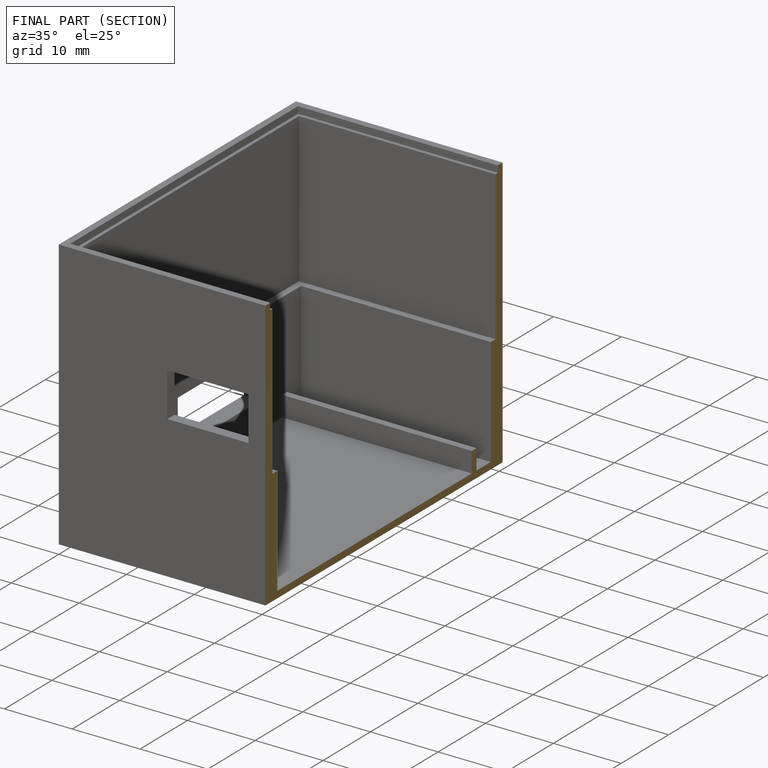
[diagram: finished part — half-section view (interior)]
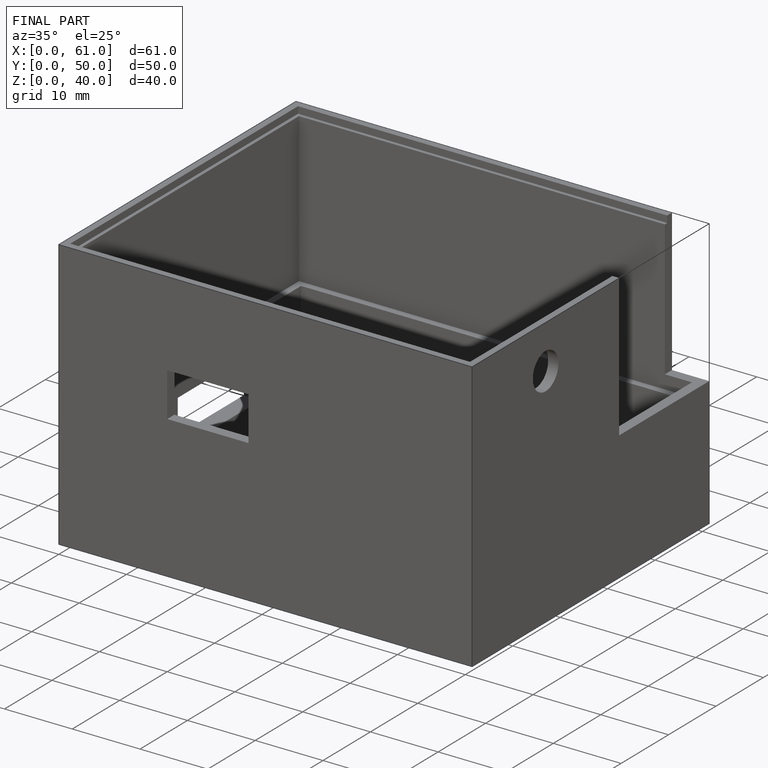
[diagram: finished part — iso view with bounding-box wireframe]
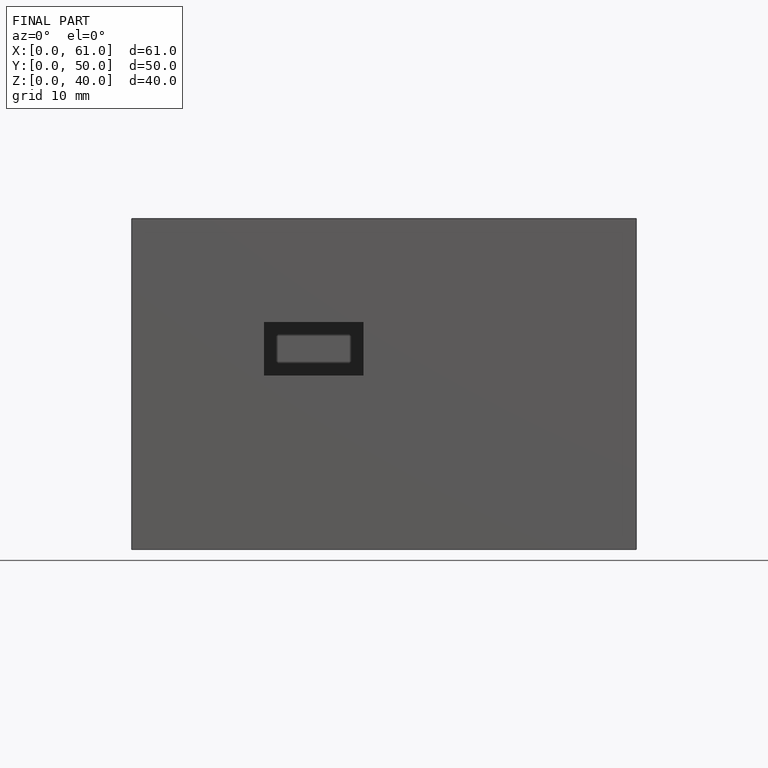
[diagram: finished part — front view with bounding-box wireframe]
